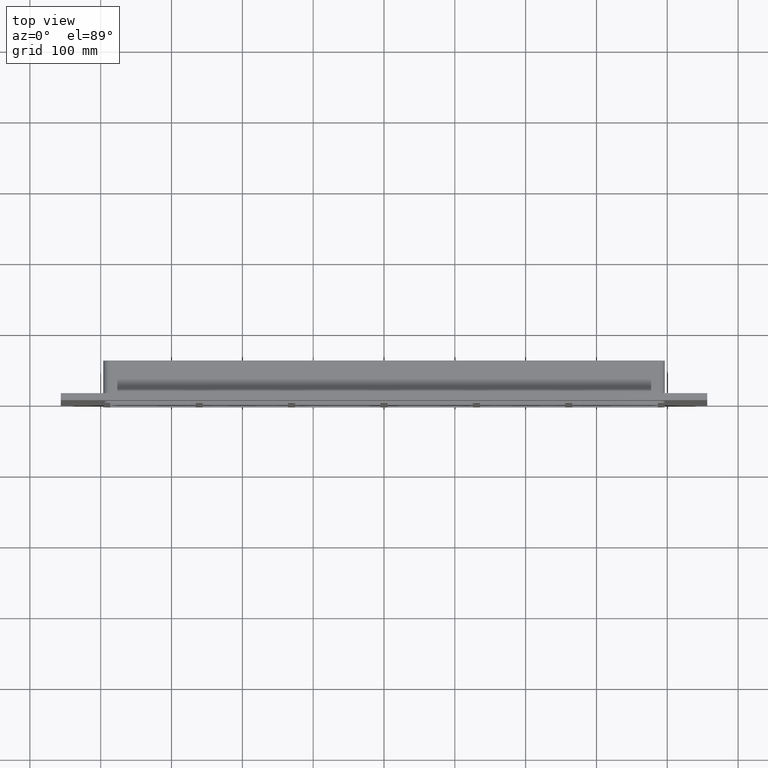
[diagram: clean part render]
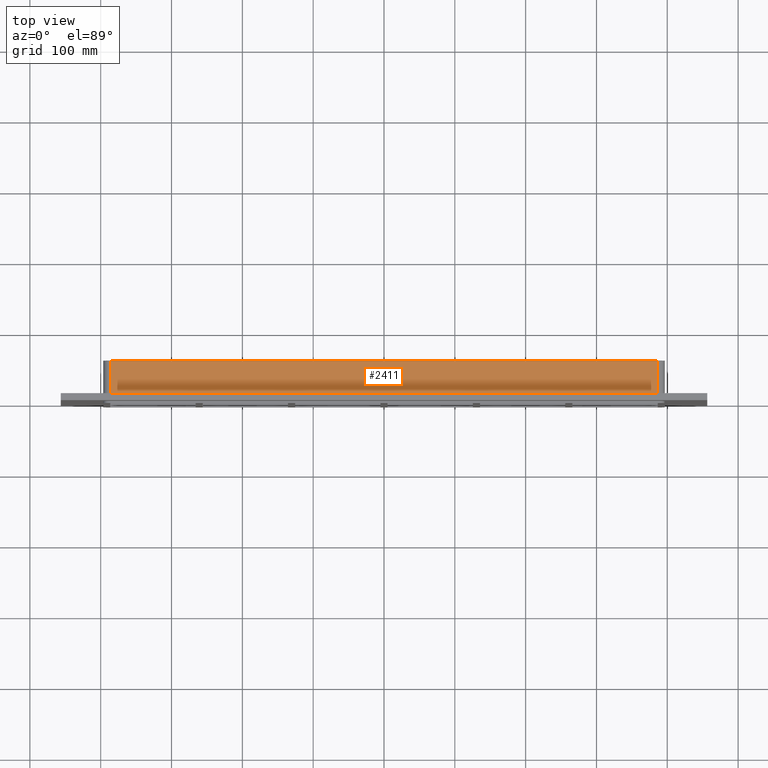
[diagram: same view with one face highlighted and labeled with its STEP entity id]
A machine part, top view. The second image highlights one B-rep face of the part: STEP entity #2411.
In plain terms, the highlighted planar face has unit normal (0, 0, 1).
Its self-contained STEP definition (entity closure, byte-faithful):
#1270=CARTESIAN_POINT('',(-386.50000000000006,57.0,179.50000000000003));
#1271=VERTEX_POINT('',#1270);
#1279=CARTESIAN_POINT('',(386.50000000000006,57.0,179.50000000000003));
#1280=VERTEX_POINT('',#1279);
#1281=CARTESIAN_POINT('',(-386.50000000000006,57.0,179.50000000000003));
#1282=DIRECTION('',(1.0,0.0,0.0));
#1283=VECTOR('',#1282,773.00000000000011);
#1284=LINE('',#1281,#1283);
#1285=EDGE_CURVE('',#1271,#1280,#1284,.T.);
#1915=CARTESIAN_POINT('',(386.50000000000006,10.0,179.50000000000003));
#1916=VERTEX_POINT('',#1915);
#1924=CARTESIAN_POINT('',(-386.50000000000006,10.0,179.50000000000003));
#1925=VERTEX_POINT('',#1924);
#1926=CARTESIAN_POINT('',(-386.50000000000006,10.0,179.50000000000003));
#1927=DIRECTION('',(1.0,0.0,0.0));
#1928=VECTOR('',#1927,773.00000000000023);
#1929=LINE('',#1926,#1928);
#1930=EDGE_CURVE('',#1925,#1916,#1929,.T.);
#2175=CARTESIAN_POINT('',(386.50000000000006,57.0,179.50000000000003));
#2176=DIRECTION('',(0.0,-1.0,0.0));
#2177=VECTOR('',#2176,47.0);
#2178=LINE('',#2175,#2177);
#2179=EDGE_CURVE('',#1280,#1916,#2178,.T.);
#2389=CARTESIAN_POINT('',(-386.50000000000006,10.0,179.50000000000003));
#2390=DIRECTION('',(0.0,1.0,0.0));
#2391=VECTOR('',#2390,47.0);
#2392=LINE('',#2389,#2391);
#2393=EDGE_CURVE('',#1925,#1271,#2392,.T.);
#2400=CARTESIAN_POINT('',(-396.50000000000006,0.0,179.50000000000003));
#2401=DIRECTION('',(0.0,0.0,1.0));
#2402=DIRECTION('',(1.0,0.0,0.0));
#2403=AXIS2_PLACEMENT_3D('',#2400,#2401,#2402);
#2404=PLANE('',#2403);
#2405=ORIENTED_EDGE('',*,*,#1930,.T.);
#2406=ORIENTED_EDGE('',*,*,#2179,.F.);
#2407=ORIENTED_EDGE('',*,*,#1285,.F.);
#2408=ORIENTED_EDGE('',*,*,#2393,.F.);
#2409=EDGE_LOOP('',(#2405,#2406,#2407,#2408));
#2410=FACE_OUTER_BOUND('',#2409,.T.);
#2411=ADVANCED_FACE('',(#2410),#2404,.T.);